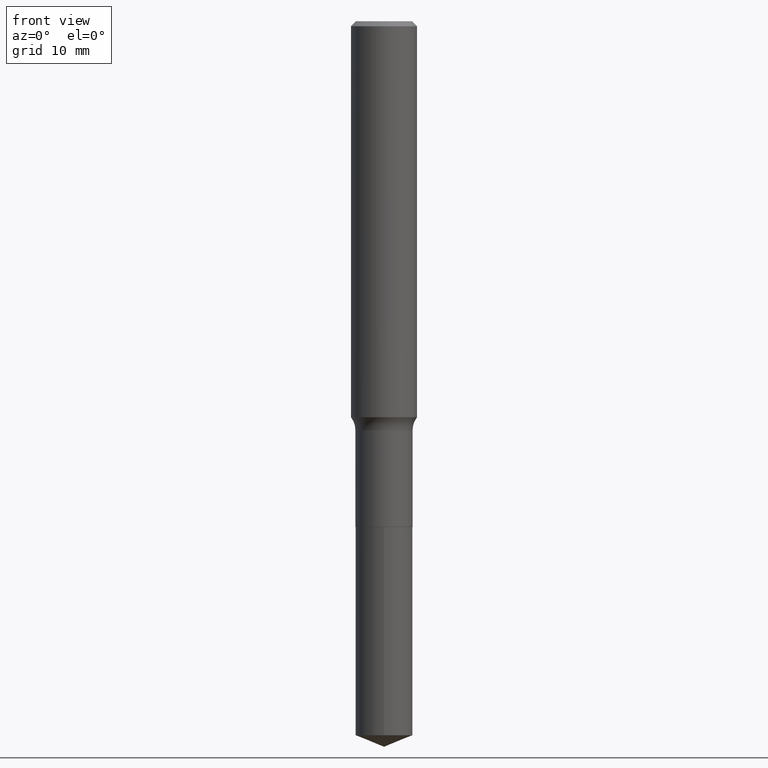
[diagram: clean part render]
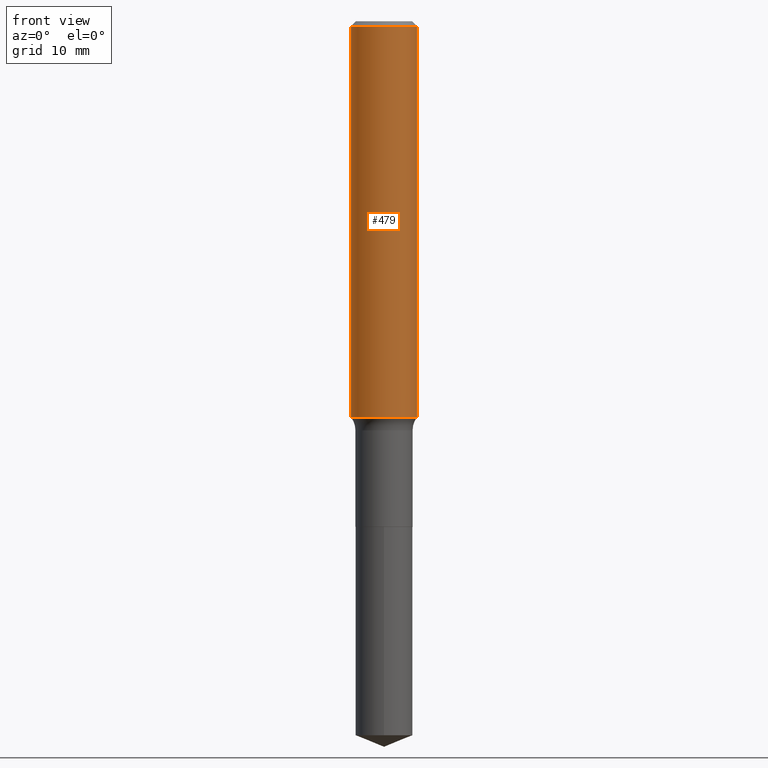
[diagram: same view with one face highlighted and labeled with its STEP entity id]
A machine part, front view. The second image highlights one B-rep face of the part: STEP entity #479.
In plain terms, the highlighted cylindrical surface (edge-blend (fillet) strip) has radius 2.9997 mm, axis along (-0, 0, 1).
Its self-contained STEP definition (entity closure, byte-faithful):
#3 = DIRECTION ( 'NONE',  ( -2.445468806185136877E-29, 3.491481338843145188E-15, 1.000000000000000000 ) ) ;
#13 = DIRECTION ( 'NONE',  ( 1.000000000000000000, -6.982962677686266711E-15, 0.000000000000000000 ) ) ;
#56 = VECTOR ( 'NONE', #429, 39.37007874015748143 ) ;
#82 = EDGE_CURVE ( 'NONE', #407, #119, #102, .T. ) ;
#86 = CARTESIAN_POINT ( 'NONE',  ( 4.332147990156996744E-31, -6.185159191760671627E-17, -0.01771500000000011260 ) ) ;
#87 = ORIENTED_EDGE ( 'NONE', *, *, #82, .T. ) ;
#92 = DIRECTION ( 'NONE',  ( -2.445468806185136597E-29, 3.491481338843145583E-15, 1.000000000000000000 ) ) ;
#98 = LINE ( 'NONE', #195, #278 ) ;
#102 = CIRCLE ( 'NONE', #385, 0.1181000000000001632 ) ;
#111 = CARTESIAN_POINT ( 'NONE',  ( 0.1180999999999999966, -8.865394841523547570E-16, -0.01771500000000011260 ) ) ;
#119 = VERTEX_POINT ( 'NONE', #228 ) ;
#131 = CARTESIAN_POINT ( 'NONE',  ( 0.000000000000000000, 0.000000000000000000, 0.000000000000000000 ) ) ;
#137 = VERTEX_POINT ( 'NONE', #111 ) ;
#188 = VERTEX_POINT ( 'NONE', #218 ) ;
#195 = CARTESIAN_POINT ( 'NONE',  ( -0.1181000000000000799, 8.391509709326788873E-16, -5.809262341591047988E-30 ) ) ;
#210 = DIRECTION ( 'NONE',  ( 1.000000000000000000, -6.982962677686266711E-15, 4.876176775795936353E-29 ) ) ;
#215 = AXIS2_PLACEMENT_3D ( 'NONE', #131, #92, #210 ) ;
#218 = CARTESIAN_POINT ( 'NONE',  ( -0.1180999999999999966, -1.667759977206778144E-15, -0.01771500000000011260 ) ) ;
#221 = ORIENTED_EDGE ( 'NONE', *, *, #356, .F. ) ;
#228 = CARTESIAN_POINT ( 'NONE',  ( 0.1181000000000001909, -5.776658196596058691E-15, -1.418300664898319630 ) ) ;
#229 = ORIENTED_EDGE ( 'NONE', *, *, #353, .T. ) ;
#235 = DIRECTION ( 'NONE',  ( -2.445468806185136597E-29, 3.491481338843145583E-15, 1.000000000000000000 ) ) ;
#239 = DIRECTION ( 'NONE',  ( 1.000000000000000000, -6.982962677686270655E-15, 0.000000000000000000 ) ) ;
#278 = VECTOR ( 'NONE', #3, 39.37007874015748143 ) ;
#281 = CARTESIAN_POINT ( 'NONE',  ( 3.468410033800479297E-29, -4.951970304361308851E-15, -1.418300664898319630 ) ) ;
#284 = CYLINDRICAL_SURFACE ( 'NONE', #215, 0.1181000000000000799 ) ;
#322 = LINE ( 'NONE', #475, #56 ) ;
#328 = AXIS2_PLACEMENT_3D ( 'NONE', #86, #235, #13 ) ;
#353 = EDGE_CURVE ( 'NONE', #119, #137, #322, .T. ) ;
#356 = EDGE_CURVE ( 'NONE', #188, #137, #369, .T. ) ;
#359 = DIRECTION ( 'NONE',  ( -2.445468806185136597E-29, 3.491481338843145583E-15, 1.000000000000000000 ) ) ;
#367 = EDGE_CURVE ( 'NONE', #407, #188, #98, .T. ) ;
#369 = CIRCLE ( 'NONE', #328, 0.1180999999999999966 ) ;
#385 = AXIS2_PLACEMENT_3D ( 'NONE', #281, #359, #239 ) ;
#395 = FACE_OUTER_BOUND ( 'NONE', #452, .T. ) ;
#407 = VERTEX_POINT ( 'NONE', #492 ) ;
#416 = ORIENTED_EDGE ( 'NONE', *, *, #367, .F. ) ;
#429 = DIRECTION ( 'NONE',  ( -2.445468806185136877E-29, 3.491481338843145188E-15, 1.000000000000000000 ) ) ;
#452 = EDGE_LOOP ( 'NONE', ( #416, #87, #229, #221 ) ) ;
#475 = CARTESIAN_POINT ( 'NONE',  ( 0.1181000000000000799, -8.246878922347486570E-16, 5.758764772215004644E-30 ) ) ;
#479 = ADVANCED_FACE ( 'NONE', ( #395 ), #284, .T. ) ;
#492 = CARTESIAN_POINT ( 'NONE',  ( -0.1181000000000001909, -4.112819333428629076E-15, -1.418300664898319630 ) ) ;